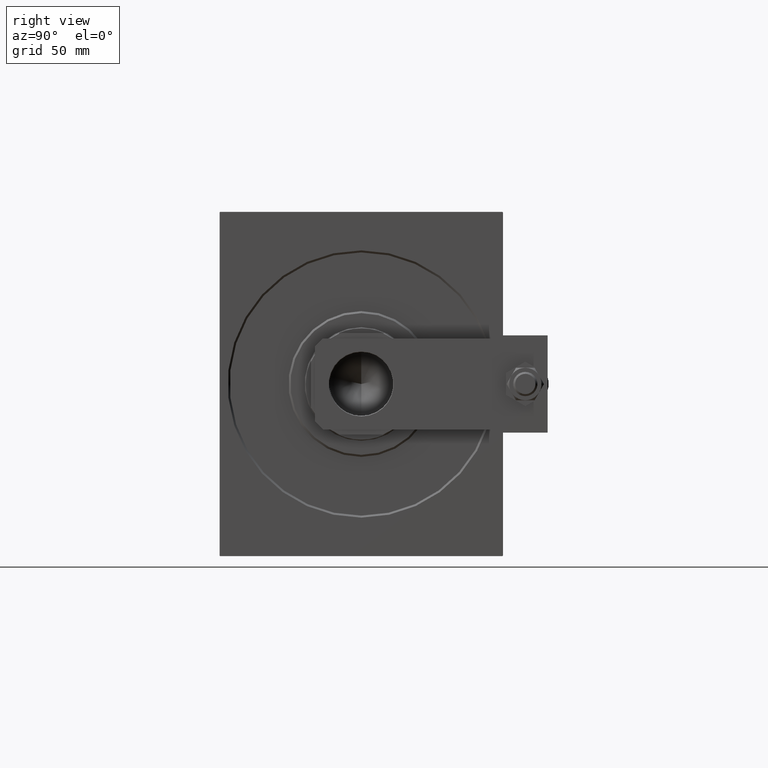
[diagram: clean part render]
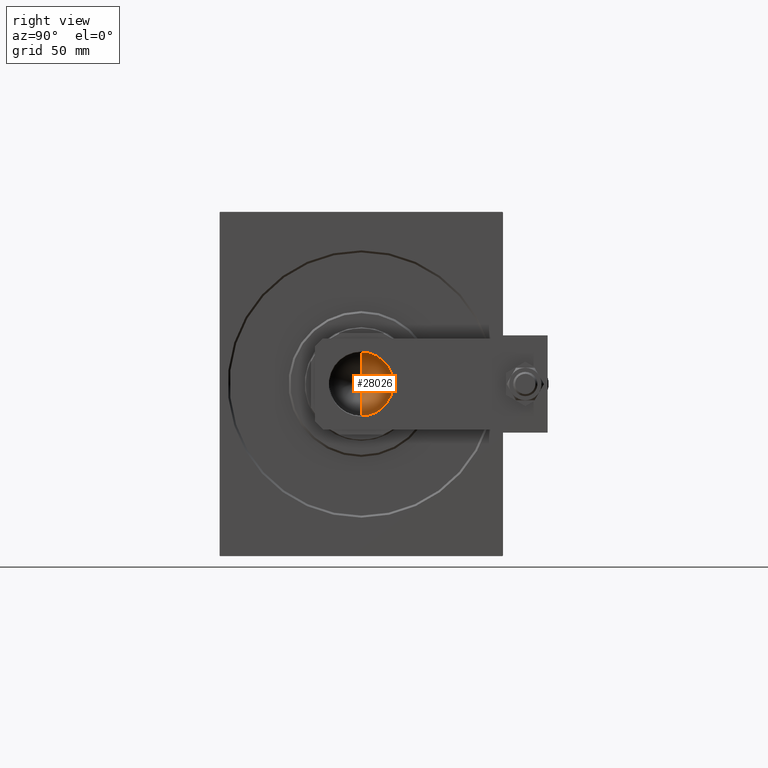
[diagram: same view with one face highlighted and labeled with its STEP entity id]
A machine part, right view. The second image highlights one B-rep face of the part: STEP entity #28026.
In plain terms, the highlighted conical surface has half-angle 59 deg.
Its self-contained STEP definition (entity closure, byte-faithful):
#314 = AXIS2_PLACEMENT_3D ( 'NONE', #17741, #32425, #28640 ) ;
#4789 = CARTESIAN_POINT ( 'NONE',  ( 0.000000000000000000, 0.000000000000000000, 106.0000000000000142 ) ) ;
#8291 = EDGE_CURVE ( 'NONE', #23197, #29994, #31531, .T. ) ;
#9100 = DIRECTION ( 'NONE',  ( -0.000000000000000000, -0.000000000000000000, 1.000000000000000000 ) ) ;
#9255 = ORIENTED_EDGE ( 'NONE', *, *, #48405, .F. ) ;
#10123 = AXIS2_PLACEMENT_3D ( 'NONE', #4789, #9100, #35624 ) ;
#10504 = CARTESIAN_POINT ( 'NONE',  ( -15.74999999999999289, 1.928818708657080556E-15, 106.0000000000000142 ) ) ;
#12771 = VERTEX_POINT ( 'NONE', #10504 ) ;
#13113 = CARTESIAN_POINT ( 'NONE',  ( -15.74999999999999289, 1.928818708657080556E-15, 106.0000000000000142 ) ) ;
#13364 = LINE ( 'NONE', #13113, #30103 ) ;
#14721 = ORIENTED_EDGE ( 'NONE', *, *, #24929, .T. ) ;
#15252 = VECTOR ( 'NONE', #35065, 1000.000000000000000 ) ;
#16369 = CARTESIAN_POINT ( 'NONE',  ( 15.74999999999999289, 0.000000000000000000, 106.0000000000000142 ) ) ;
#17427 = ORIENTED_EDGE ( 'NONE', *, *, #8291, .T. ) ;
#17741 = CARTESIAN_POINT ( 'NONE',  ( 0.000000000000000000, 0.000000000000000000, 106.0000000000000142 ) ) ;
#22213 = CARTESIAN_POINT ( 'NONE',  ( 15.74999999999999289, 0.000000000000000000, 106.0000000000000142 ) ) ;
#23197 = VERTEX_POINT ( 'NONE', #41796 ) ;
#24929 = EDGE_CURVE ( 'NONE', #29994, #12771, #27774, .T. ) ;
#25845 = EDGE_LOOP ( 'NONE', ( #9255, #17427, #14721 ) ) ;
#26233 = CONICAL_SURFACE ( 'NONE', #10123, 15.74999999999999289, 1.029744258676653867 ) ;
#27774 = CIRCLE ( 'NONE', #314, 15.74999999999999289 ) ;
#28026 = ADVANCED_FACE ( 'NONE', ( #28293 ), #26233, .F. ) ;
#28293 = FACE_OUTER_BOUND ( 'NONE', #25845, .T. ) ;
#28640 = DIRECTION ( 'NONE',  ( 1.000000000000000000, 0.000000000000000000, 0.000000000000000000 ) ) ;
#29994 = VERTEX_POINT ( 'NONE', #22213 ) ;
#30103 = VECTOR ( 'NONE', #33061, 1000.000000000000000 ) ;
#31531 = LINE ( 'NONE', #16369, #15252 ) ;
#32425 = DIRECTION ( 'NONE',  ( -0.000000000000000000, -0.000000000000000000, 1.000000000000000000 ) ) ;
#33061 = DIRECTION ( 'NONE',  ( -0.8571673007021120005, 1.049727191138618326E-16, 0.5150380749100547106 ) ) ;
#35065 = DIRECTION ( 'NONE',  ( 0.8571673007021120005, 0.000000000000000000, 0.5150380749100547106 ) ) ;
#35624 = DIRECTION ( 'NONE',  ( 1.000000000000000000, 0.000000000000000000, 0.000000000000000000 ) ) ;
#41796 = CARTESIAN_POINT ( 'NONE',  ( -1.199718644317817648E-14, 0.000000000000000000, 96.53644525031593560 ) ) ;
#48405 = EDGE_CURVE ( 'NONE', #23197, #12771, #13364, .T. ) ;